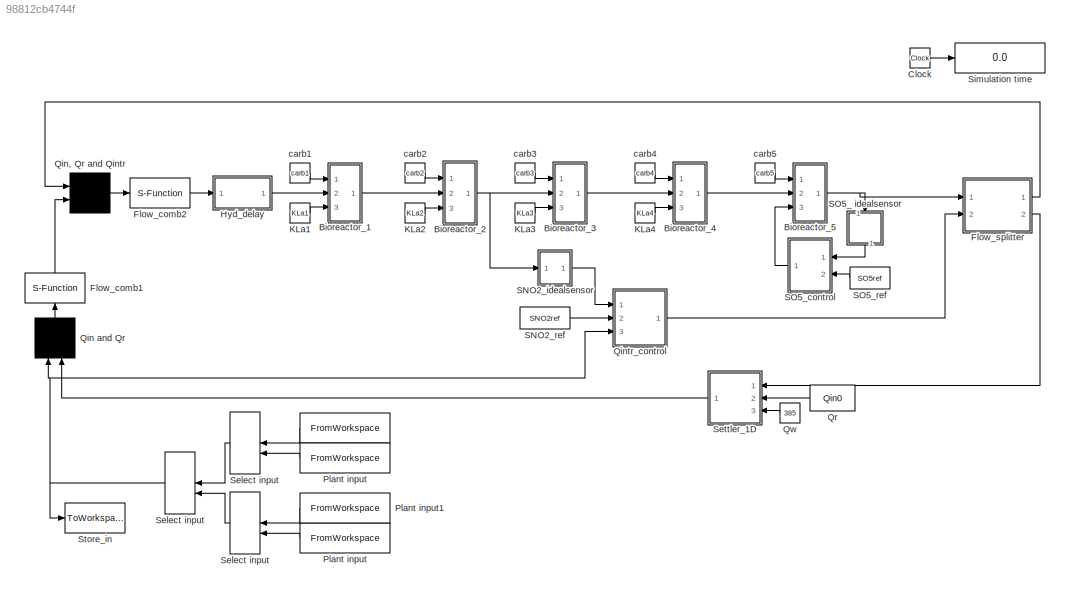
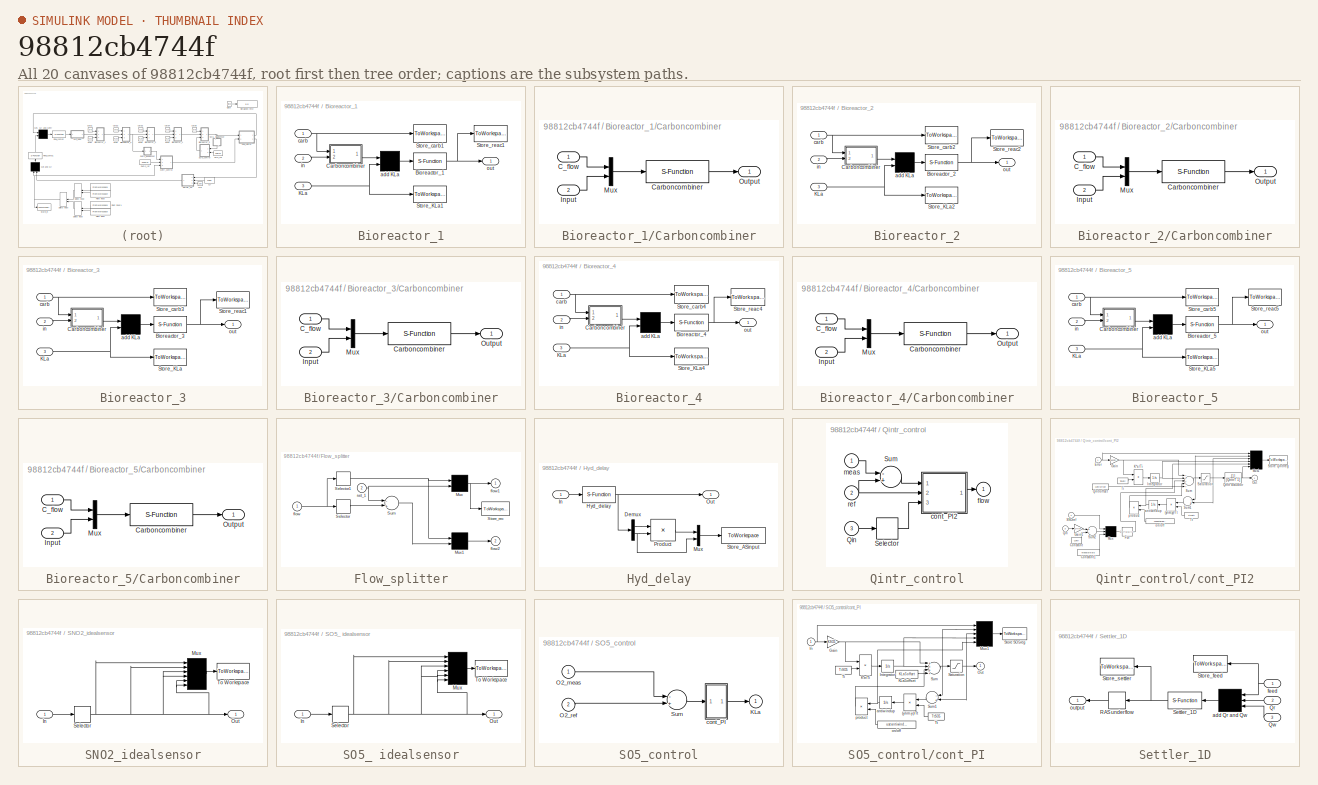
[diagram: thumbnail index - all 20 canvases of the model, root first then tree order]
MODEL slx_98812cb4744f
KIND model
CONFIG AbsTol = 1e-8
CONFIG EnableMultiTasking = off
CONFIG FixedStep = 0.01
CONFIG MaxStep = auto
CONFIG MinStep = auto
CONFIG RelTol = 1e-5
CONFIG SampleTimeConstraint = Unconstrained
CONFIG Solver = ode15s
CONFIG SolverName = ode15s
CONFIG StartTime = 0.0
CONFIG StopTime = 150
BLOCK [FromWorkspace]  
  OutputAfterFinalValue = Holding final value
  VariableName = CONSTINFLUENT
BLOCK [ManualSwitch]  Select input
BLOCK [SubSystem] Bioreactor_1
  Ports = [3, 1]
  RequestExecContextInheritance = off
BLOCK [S-Function] Bioreactor_1/Bioreactor_1
  EnableBusSupport = off
  FunctionName = asm1
  Parameters = XINIT1,PAR1,VOL1,SOSAT1
  Ports = [1, 1]
  SFcnIsStateOwnerBlock = off
  SFunctionDeploymentMode = off
BLOCK [SubSystem] Bioreactor_1/Carboncombiner
  Ports = [2, 1]
  RequestExecContextInheritance = off
BLOCK [Inport] Bioreactor_1/Carboncombiner/C_flow
  IconDisplay = Port number
BLOCK [S-Function] Bioreactor_1/Carboncombiner/Carboncombiner
  EnableBusSupport = off
  FunctionName = carboncombiner
  Parameters = CARBONSOURCECONC
  Ports = [1, 1]
  SFcnIsStateOwnerBlock = off
  SFunctionDeploymentMode = off
BLOCK [Inport] Bioreactor_1/Carboncombiner/Input
  IconDisplay = Port number
  Port = 2
BLOCK [Mux] Bioreactor_1/Carboncombiner/Mux
  DisplayOption = bar
  Inputs = 2
  Ports = [2, 1]
BLOCK [Outport] Bioreactor_1/Carboncombiner/Output
  IconDisplay = Port number
BLOCK [Inport] Bioreactor_1/KLa
  IconDisplay = Port number
  Port = 3
BLOCK [ToWorkspace] Bioreactor_1/Store_KLa1
  MaxDataPoints = inf
  Ports = [1]
  SampleTime = -1
  VariableName = kla1in
BLOCK [ToWorkspace] Bioreactor_1/Store_carb1
  MaxDataPoints = inf
  Ports = [1]
  SampleTime = -1
  VariableName = carbon1in
BLOCK [ToWorkspace] Bioreactor_1/Store_reac1
  MaxDataPoints = inf
  Ports = [1]
  SampleTime = -1
  VariableName = reac1
BLOCK [Mux] Bioreactor_1/add KLa
  Inputs = 2
  Ports = [2, 1]
BLOCK [Inport] Bioreactor_1/carb
  IconDisplay = Port number
BLOCK [Inport] Bioreactor_1/in
  IconDisplay = Port number
  Port = 2
BLOCK [Outport] Bioreactor_1/out
  IconDisplay = Port number
BLOCK [SubSystem] Bioreactor_2
  Ports = [3, 1]
  RequestExecContextInheritance = off
BLOCK [S-Function] Bioreactor_2/Bioreactor_2
  EnableBusSupport = off
  FunctionName = asm1
  Parameters = XINIT2,PAR2,VOL2,SOSAT2
  Ports = [1, 1]
  SFcnIsStateOwnerBlock = off
  SFunctionDeploymentMode = off
BLOCK [SubSystem] Bioreactor_2/Carboncombiner
  Ports = [2, 1]
  RequestExecContextInheritance = off
BLOCK [Inport] Bioreactor_2/Carboncombiner/C_flow
  IconDisplay = Port number
BLOCK [S-Function] Bioreactor_2/Carboncombiner/Carboncombiner
  EnableBusSupport = off
  FunctionName = carboncombiner
  Parameters = CARBONSOURCECONC
  Ports = [1, 1]
  SFcnIsStateOwnerBlock = off
  SFunctionDeploymentMode = off
BLOCK [Inport] Bioreactor_2/Carboncombiner/Input
  IconDisplay = Port number
  Port = 2
BLOCK [Mux] Bioreactor_2/Carboncombiner/Mux
  DisplayOption = bar
  Inputs = 2
  Ports = [2, 1]
BLOCK [Outport] Bioreactor_2/Carboncombiner/Output
  IconDisplay = Port number
BLOCK [Inport] Bioreactor_2/KLa
  IconDisplay = Port number
  Port = 3
BLOCK [ToWorkspace] Bioreactor_2/Store_KLa2
  MaxDataPoints = inf
  Ports = [1]
  SampleTime = -1
  VariableName = kla2in
BLOCK [ToWorkspace] Bioreactor_2/Store_carb2
  MaxDataPoints = inf
  Ports = [1]
  SampleTime = -1
  VariableName = carbon2in
BLOCK [ToWorkspace] Bioreactor_2/Store_reac2
  MaxDataPoints = inf
  Ports = [1]
  SampleTime = -1
  VariableName = reac2
BLOCK [Mux] Bioreactor_2/add KLa
  Inputs = 2
  Ports = [2, 1]
BLOCK [Inport] Bioreactor_2/carb
  IconDisplay = Port number
BLOCK [Inport] Bioreactor_2/in
  IconDisplay = Port number
  Port = 2
BLOCK [Outport] Bioreactor_2/out
  IconDisplay = Port number
BLOCK [SubSystem] Bioreactor_3
  Ports = [3, 1]
  RequestExecContextInheritance = off
BLOCK [S-Function] Bioreactor_3/Bioreactor_3
  EnableBusSupport = off
  FunctionName = asm1
  Parameters = XINIT3,PAR3,VOL3,SOSAT3
  Ports = [1, 1]
  SFcnIsStateOwnerBlock = off
  SFunctionDeploymentMode = off
BLOCK [SubSystem] Bioreactor_3/Carboncombiner
  Ports = [2, 1]
  RequestExecContextInheritance = off
BLOCK [Inport] Bioreactor_3/Carboncombiner/C_flow
  IconDisplay = Port number
BLOCK [S-Function] Bioreactor_3/Carboncombiner/Carboncombiner
  EnableBusSupport = off
  FunctionName = carboncombiner
  Parameters = CARBONSOURCECONC
  Ports = [1, 1]
  SFcnIsStateOwnerBlock = off
  SFunctionDeploymentMode = off
BLOCK [Inport] Bioreactor_3/Carboncombiner/Input
  IconDisplay = Port number
  Port = 2
BLOCK [Mux] Bioreactor_3/Carboncombiner/Mux
  DisplayOption = bar
  Inputs = 2
  Ports = [2, 1]
BLOCK [Outport] Bioreactor_3/Carboncombiner/Output
  IconDisplay = Port number
BLOCK [Inport] Bioreactor_3/KLa
  IconDisplay = Port number
  Port = 3
BLOCK [ToWorkspace] Bioreactor_3/Store_KLa
  MaxDataPoints = inf
  Ports = [1]
  SampleTime = -1
  VariableName = kla3in
BLOCK [ToWorkspace] Bioreactor_3/Store_carb3
  MaxDataPoints = inf
  Ports = [1]
  SampleTime = -1
  VariableName = carbon3in
BLOCK [ToWorkspace] Bioreactor_3/Store_reac1
  MaxDataPoints = inf
  Ports = [1]
  SampleTime = -1
  VariableName = reac3
BLOCK [Mux] Bioreactor_3/add KLa
  Inputs = 2
  Ports = [2, 1]
BLOCK [Inport] Bioreactor_3/carb
  IconDisplay = Port number
BLOCK [Inport] Bioreactor_3/in
  IconDisplay = Port number
  Port = 2
BLOCK [Outport] Bioreactor_3/out
  IconDisplay = Port number
BLOCK [SubSystem] Bioreactor_4
  Ports = [3, 1]
  RequestExecContextInheritance = off
BLOCK [S-Function] Bioreactor_4/Bioreactor_4
  EnableBusSupport = off
  FunctionName = asm1
  Parameters = XINIT4,PAR4,VOL4,SOSAT4
  Ports = [1, 1]
  SFcnIsStateOwnerBlock = off
  SFunctionDeploymentMode = off
BLOCK [SubSystem] Bioreactor_4/Carboncombiner
  Ports = [2, 1]
  RequestExecContextInheritance = off
BLOCK [Inport] Bioreactor_4/Carboncombiner/C_flow
  IconDisplay = Port number
BLOCK [S-Function] Bioreactor_4/Carboncombiner/Carboncombiner
  EnableBusSupport = off
  FunctionName = carboncombiner
  Parameters = CARBONSOURCECONC
  Ports = [1, 1]
  SFcnIsStateOwnerBlock = off
  SFunctionDeploymentMode = off
BLOCK [Inport] Bioreactor_4/Carboncombiner/Input
  IconDisplay = Port number
  Port = 2
BLOCK [Mux] Bioreactor_4/Carboncombiner/Mux
  DisplayOption = bar
  Inputs = 2
  Ports = [2, 1]
BLOCK [Outport] Bioreactor_4/Carboncombiner/Output
  IconDisplay = Port number
BLOCK [Inport] Bioreactor_4/KLa
  IconDisplay = Port number
  Port = 3
BLOCK [ToWorkspace] Bioreactor_4/Store_KLa4
  MaxDataPoints = inf
  Ports = [1]
  SampleTime = -1
  VariableName = kla4in
BLOCK [ToWorkspace] Bioreactor_4/Store_carb4
  MaxDataPoints = inf
  Ports = [1]
  SampleTime = -1
  VariableName = carbon4in
BLOCK [ToWorkspace] Bioreactor_4/Store_reac4
  MaxDataPoints = inf
  Ports = [1]
  SampleTime = -1
  VariableName = reac4
BLOCK [Mux] Bioreactor_4/add KLa
  Inputs = 2
  Ports = [2, 1]
BLOCK [Inport] Bioreactor_4/carb
  IconDisplay = Port number
BLOCK [Inport] Bioreactor_4/in
  IconDisplay = Port number
  Port = 2
BLOCK [Outport] Bioreactor_4/out
  IconDisplay = Port number
BLOCK [SubSystem] Bioreactor_5
  Ports = [3, 1]
  RequestExecContextInheritance = off
BLOCK [S-Function] Bioreactor_5/Bioreactor_5
  EnableBusSupport = off
  FunctionName = asm1
  Parameters = XINIT5,PAR5,VOL5,SOSAT5
  Ports = [1, 1]
  SFcnIsStateOwnerBlock = off
  SFunctionDeploymentMode = off
BLOCK [SubSystem] Bioreactor_5/Carboncombiner
  Ports = [2, 1]
  RequestExecContextInheritance = off
BLOCK [Inport] Bioreactor_5/Carboncombiner/C_flow
  IconDisplay = Port number
BLOCK [S-Function] Bioreactor_5/Carboncombiner/Carboncombiner
  EnableBusSupport = off
  FunctionName = carboncombiner
  Parameters = CARBONSOURCECONC
  Ports = [1, 1]
  SFcnIsStateOwnerBlock = off
  SFunctionDeploymentMode = off
BLOCK [Inport] Bioreactor_5/Carboncombiner/Input
  IconDisplay = Port number
  Port = 2
BLOCK [Mux] Bioreactor_5/Carboncombiner/Mux
  DisplayOption = bar
  Inputs = 2
  Ports = [2, 1]
BLOCK [Outport] Bioreactor_5/Carboncombiner/Output
  IconDisplay = Port number
BLOCK [Inport] Bioreactor_5/KLa
  IconDisplay = Port number
  Port = 3
BLOCK [ToWorkspace] Bioreactor_5/Store_KLa5
  MaxDataPoints = inf
  Ports = [1]
  SampleTime = -1
  VariableName = kla5in
BLOCK [ToWorkspace] Bioreactor_5/Store_carb5
  MaxDataPoints = inf
  Ports = [1]
  SampleTime = -1
  VariableName = carbon5in
BLOCK [ToWorkspace] Bioreactor_5/Store_reac5
  MaxDataPoints = inf
  Ports = [1]
  SampleTime = -1
  VariableName = reac5
BLOCK [Mux] Bioreactor_5/add KLa
  Inputs = 2
  Ports = [2, 1]
BLOCK [Inport] Bioreactor_5/carb
  IconDisplay = Port number
BLOCK [Inport] Bioreactor_5/in
  IconDisplay = Port number
  Port = 2
BLOCK [Outport] Bioreactor_5/out
  IconDisplay = Port number
BLOCK [Clock] Clock
BLOCK [S-Function] Flow_comb1
  EnableBusSupport = off
  FunctionName = combiner
  Ports = [1, 1]
  SFcnIsStateOwnerBlock = off
  SFunctionDeploymentMode = off
BLOCK [S-Function] Flow_comb2
  EnableBusSupport = off
  FunctionName = combiner
  Ports = [1, 1]
  SFcnIsStateOwnerBlock = off
  SFunctionDeploymentMode = off
BLOCK [SubSystem] Flow_splitter
  Ports = [2, 2]
  RequestExecContextInheritance = off
BLOCK [Mux] Flow_splitter/Mux
  Inputs = 2
  Ports = [2, 1]
BLOCK [Mux] Flow_splitter/Mux1
  Inputs = 2
  Ports = [2, 1]
BLOCK [Selector] Flow_splitter/Selector
  IndexOptions = Index vector (dialog)
  Indices = [15]
  InputPortWidth = 15
  OutputSizes = 1
  Ports = [1, 1]
BLOCK [Selector] Flow_splitter/Selector1
  IndexOptions = Index vector (dialog)
  Indices = [1 2 3 4 5 6 7 8 9 10 11 12 13 14]
  InputPortWidth = 15
  OutputSizes = 1
  Ports = [1, 1]
BLOCK [ToWorkspace] Flow_splitter/Store_rec
  MaxDataPoints = inf
  Ports = [1]
  SampleTime = -1
  VariableName = rec
BLOCK [Sum] Flow_splitter/Sum
  Inputs = -+
  Ports = [2, 1]
BLOCK [Inport] Flow_splitter/flow
  IconDisplay = Port number
BLOCK [Outport] Flow_splitter/flow1
  IconDisplay = Port number
BLOCK [Outport] Flow_splitter/flow2
  IconDisplay = Port number
  Port = 2
BLOCK [Inport] Flow_splitter/set_1
  IconDisplay = Port number
  Port = 2
BLOCK [SubSystem] Hyd_delay
  Ports = [1, 1]
  RequestExecContextInheritance = off
BLOCK [Demux] Hyd_delay/Demux
  Outputs = [14,1]
  Ports = [1, 2]
BLOCK [S-Function] Hyd_delay/Hyd_delay
  EnableBusSupport = off
  FunctionName = hyddelayv3
  Parameters = XINITDELAY,PAR1,T
  Ports = [1, 1]
  SFcnIsStateOwnerBlock = off
  SFunctionDeploymentMode = off
BLOCK [Inport] Hyd_delay/In
  IconDisplay = Port number
BLOCK [Mux] Hyd_delay/Mux
  DisplayOption = bar
  Inputs = 2
  Ports = [2, 1]
BLOCK [Outport] Hyd_delay/Out
  IconDisplay = Port number
BLOCK [Product] Hyd_delay/Product
  InputSameDT = off
  Ports = [2, 1]
  RndMeth = Floor
BLOCK [ToWorkspace] Hyd_delay/Store_ASinput
  MaxDataPoints = inf
  Ports = [1]
  SampleTime = -1
  VariableName = ASinput
BLOCK [Constant] KLa1
  Value = KLa1
BLOCK [Constant] KLa2
  Value = KLa2
BLOCK [Constant] KLa3
  Value = KLa3
BLOCK [Constant] KLa4
  Value = KLa4
BLOCK [FromWorkspace] Plant input
  OutputAfterFinalValue = Holding final value
  VariableName = DRYINFLUENT
BLOCK [FromWorkspace] Plant input 
  OutputAfterFinalValue = Holding final value
  VariableName = STORMINFLUENT
BLOCK [FromWorkspace] Plant input1
  OutputAfterFinalValue = Holding final value
  VariableName = RAININFLUENT
BLOCK [Mux] Qin and Qr
  Inputs = 2
  Ports = [2, 1]
BLOCK [Mux] Qin, Qr and Qintr
  Inputs = 2
  Ports = [2, 1]
BLOCK [SubSystem] Qintr_control
  Ports = [3, 1]
  RequestExecContextInheritance = off
BLOCK [Inport] Qintr_control/Qin
  IconDisplay = Port number
  Port = 3
BLOCK [Selector] Qintr_control/Selector
  IndexOptions = Index vector (dialog)
  Indices = [15]
  InputPortWidth = 15
  OutputSizes = 1
  Ports = [1, 1]
BLOCK [Sum] Qintr_control/Sum
  Inputs = -+
  Ports = [2, 1]
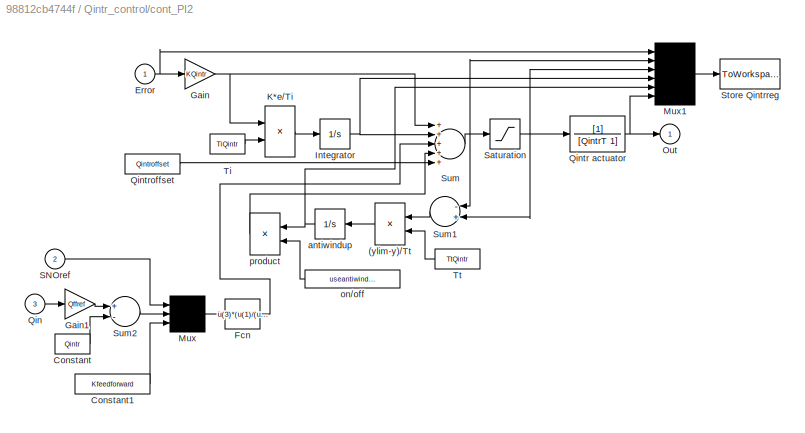
BLOCK [SubSystem] Qintr_control/cont_PI2
  Ports = [3, 1]
  RequestExecContextInheritance = off
BLOCK [Product] Qintr_control/cont_PI2/(ylim-y)//Tt
  Inputs = */
  Ports = [2, 1]
  RndMeth = Floor
BLOCK [Constant] Qintr_control/cont_PI2/Constant
  Value = Qintr
BLOCK [Constant] Qintr_control/cont_PI2/Constant1
  Value = Kfeedforward
BLOCK [Inport] Qintr_control/cont_PI2/Error
  IconDisplay = Port number
BLOCK [Fcn] Qintr_control/cont_PI2/Fcn
  Expr = u(3)*(u(1)/(u(1)+1))*u(2)
BLOCK [Gain] Qintr_control/cont_PI2/Gain
  Gain = KQintr
BLOCK [Gain] Qintr_control/cont_PI2/Gain1
  Gain = Qffref
BLOCK [Integrator] Qintr_control/cont_PI2/Integrator
  InitialCondition = Qintrintstate
  Ports = [1, 1]
BLOCK [Product] Qintr_control/cont_PI2/K*e//Ti
  Inputs = */
  Ports = [2, 1]
  RndMeth = Floor
BLOCK [Mux] Qintr_control/cont_PI2/Mux
  Inputs = 3
  Ports = [3, 1]
BLOCK [Mux] Qintr_control/cont_PI2/Mux1
  Inputs = 6
  Ports = [6, 1]
BLOCK [Outport] Qintr_control/cont_PI2/Out
  IconDisplay = Port number
BLOCK [Inport] Qintr_control/cont_PI2/Qin
  IconDisplay = Port number
  Port = 3
BLOCK [TransferFcn] Qintr_control/cont_PI2/Qintr actuator
  Denominator = [QintrT 1]
BLOCK [Constant] Qintr_control/cont_PI2/Qintroffset
  Value = Qintroffset
BLOCK [Inport] Qintr_control/cont_PI2/SNOref
  IconDisplay = Port number
  Port = 2
BLOCK [Saturate] Qintr_control/cont_PI2/Saturation
  InputPortMap = u0
  LowerLimit = 0
  Ports = [1, 1]
  UpperLimit = Qintr_max
BLOCK [ToWorkspace] Qintr_control/cont_PI2/Store Qintrreg
  MaxDataPoints = inf
  Ports = [1]
  SampleTime = -1
  VariableName = Qintrreg
BLOCK [Sum] Qintr_control/cont_PI2/Sum
  Inputs = +++++
  Ports = [5, 1]
BLOCK [Sum] Qintr_control/cont_PI2/Sum1
  Inputs = -+
  Ports = [2, 1]
BLOCK [Sum] Qintr_control/cont_PI2/Sum2
  Inputs = +-
  Ports = [2, 1]
BLOCK [Constant] Qintr_control/cont_PI2/Ti
  Value = TiQintr
BLOCK [Constant] Qintr_control/cont_PI2/Tt
  Value = TtQintr
BLOCK [Integrator] Qintr_control/cont_PI2/antiwindup
  InitialCondition = Qintrawstate
  Ports = [1, 1]
BLOCK [Constant] Qintr_control/cont_PI2/on//off
  Value = useantiwindupQintr
BLOCK [Product] Qintr_control/cont_PI2/product
  Inputs = **
  Ports = [2, 1]
  RndMeth = Floor
BLOCK [Outport] Qintr_control/flow
  IconDisplay = Port number
BLOCK [Inport] Qintr_control/meas
  IconDisplay = Port number
BLOCK [Inport] Qintr_control/ref
  IconDisplay = Port number
  Port = 2
BLOCK [Constant] Qr
  Value = Qin0
BLOCK [Constant] Qw
  Value = 385
BLOCK [SubSystem] SNO2_idealsensor
  Ports = [1, 1]
  RequestExecContextInheritance = off
BLOCK [Inport] SNO2_idealsensor/In
  IconDisplay = Port number
BLOCK [Mux] SNO2_idealsensor/Mux
  Inputs = 6
  Ports = [6, 1]
BLOCK [Outport] SNO2_idealsensor/Out
  IconDisplay = Port number
BLOCK [Selector] SNO2_idealsensor/Selector
  IndexOptions = Index vector (dialog)
  Indices = [9]
  InputPortWidth = 15
  OutputSizes = 1
  Ports = [1, 1]
BLOCK [ToWorkspace] SNO2_idealsensor/To Workspace
  MaxDataPoints = inf
  Ports = [1]
  SampleTime = -1
  VariableName = SNO2sensor
BLOCK [Constant] SNO2_ref
  Value = SNO2ref
BLOCK [SubSystem] SO5_ idealsensor
  Ports = [1, 1]
  RequestExecContextInheritance = off
BLOCK [Inport] SO5_ idealsensor/In
  IconDisplay = Port number
BLOCK [Mux] SO5_ idealsensor/Mux
  Inputs = 6
  Ports = [6, 1]
BLOCK [Outport] SO5_ idealsensor/Out
  IconDisplay = Port number
BLOCK [Selector] SO5_ idealsensor/Selector
  IndexOptions = Index vector (dialog)
  Indices = [8]
  InputPortWidth = 15
  OutputSizes = 1
  Ports = [1, 1]
BLOCK [ToWorkspace] SO5_ idealsensor/To Workspace
  MaxDataPoints = inf
  Ports = [1]
  SampleTime = -1
  VariableName = SO5sensor
BLOCK [SubSystem] SO5_control
  Ports = [2, 1]
  RequestExecContextInheritance = off
BLOCK [Outport] SO5_control/KLa
  IconDisplay = Port number
BLOCK [Inport] SO5_control/O2_meas
  IconDisplay = Port number
BLOCK [Inport] SO5_control/O2_ref
  IconDisplay = Port number
  Port = 2
BLOCK [Sum] SO5_control/Sum
  Inputs = -+
  Ports = [2, 1]
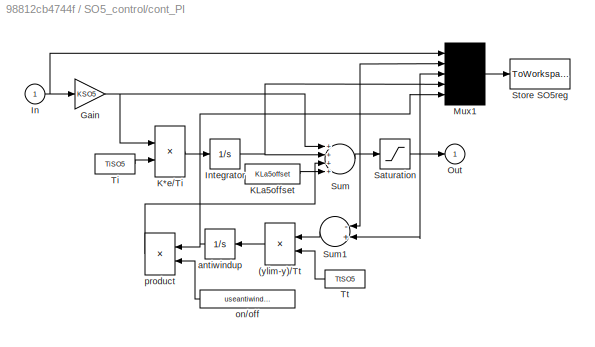
BLOCK [SubSystem] SO5_control/cont_PI
  Ports = [1, 1]
  RequestExecContextInheritance = off
BLOCK [Product] SO5_control/cont_PI/(ylim-y)//Tt
  Inputs = */
  Ports = [2, 1]
  RndMeth = Floor
BLOCK [Gain] SO5_control/cont_PI/Gain
  Gain = KSO5
BLOCK [Inport] SO5_control/cont_PI/In
  IconDisplay = Port number
BLOCK [Integrator] SO5_control/cont_PI/Integrator
  InitialCondition = SO5intstate
  Ports = [1, 1]
BLOCK [Product] SO5_control/cont_PI/K*e//Ti
  Inputs = */
  Ports = [2, 1]
  RndMeth = Floor
BLOCK [Constant] SO5_control/cont_PI/KLa5offset
  Value = KLa5offset
BLOCK [Mux] SO5_control/cont_PI/Mux1
  Inputs = 5
  Ports = [5, 1]
BLOCK [Outport] SO5_control/cont_PI/Out
  IconDisplay = Port number
BLOCK [Saturate] SO5_control/cont_PI/Saturation
  InputPortMap = u0
  LowerLimit = 0
  Ports = [1, 1]
  UpperLimit = KLa5_max
BLOCK [ToWorkspace] SO5_control/cont_PI/Store SO5reg
  MaxDataPoints = inf
  Ports = [1]
  SampleTime = -1
  VariableName = SO5reg
BLOCK [Sum] SO5_control/cont_PI/Sum
  Inputs = ++++
  Ports = [4, 1]
BLOCK [Sum] SO5_control/cont_PI/Sum1
  Inputs = -+
  Ports = [2, 1]
BLOCK [Constant] SO5_control/cont_PI/Ti
  Value = TiSO5
BLOCK [Constant] SO5_control/cont_PI/Tt
  Value = TtSO5
BLOCK [Integrator] SO5_control/cont_PI/antiwindup
  InitialCondition = SO5awstate
  Ports = [1, 1]
BLOCK [Constant] SO5_control/cont_PI/on//off
  Value = useantiwindupSO5
BLOCK [Product] SO5_control/cont_PI/product
  Inputs = **
  Ports = [2, 1]
  RndMeth = Floor
BLOCK [Constant] SO5_ref
  Value = SO5ref
BLOCK [ManualSwitch] Select input
BLOCK [ManualSwitch] Select input 
  CurrentSetting = 0
BLOCK [SubSystem] Settler_1D
  Ports = [3, 1]
  RequestExecContextInheritance = off
BLOCK [Inport] Settler_1D/Qr
  IconDisplay = Port number
  Port = 2
BLOCK [Inport] Settler_1D/Qw
  IconDisplay = Port number
  Port = 3
BLOCK [Selector] Settler_1D/RAS underflow
  IndexOptions = Index vector (dialog)
  Indices = [1 2 3 4 5 6 7 8 9 10 11 12 13 14 15]
  InputPortWidth = 113
  OutputSizes = 1
  Ports = [1, 1]
BLOCK [S-Function] Settler_1D/Settler_1D
  EnableBusSupport = off
  FunctionName = settler1dv4
  Parameters = SETTLERINIT,SETTLERPAR,DIM,LAYER,MODELTYPE
  Ports = [1, 1]
  SFcnIsStateOwnerBlock = off
  SFunctionDeploymentMode = off
BLOCK [ToWorkspace] Settler_1D/Store_feed
  MaxDataPoints = inf
  Ports = [1]
  SampleTime = -1
  VariableName = feed
BLOCK [ToWorkspace] Settler_1D/Store_settler
  MaxDataPoints = inf
  Ports = [1]
  SampleTime = -1
  VariableName = settler
BLOCK [Mux] Settler_1D/add Qr and Qw
  Inputs = 3
  Ports = [3, 1]
BLOCK [Inport] Settler_1D/feed
  IconDisplay = Port number
BLOCK [Outport] Settler_1D/output
  IconDisplay = Port number
BLOCK [Display] Simulation time
  Decimation = 1
  Ports = [1]
BLOCK [ToWorkspace] Store_in
  MaxDataPoints = inf
  Ports = [1]
  SampleTime = -1
  VariableName = in
BLOCK [Constant] carb1
  Value = carb1
BLOCK [Constant] carb2
  Value = carb2
BLOCK [Constant] carb3
  Value = carb3
BLOCK [Constant] carb4
  Value = carb4
BLOCK [Constant] carb5
  Value = carb5
LINE  :1 -> Select input:1
NET  Select input:1 -> Qin and Qr:1, Qintr_control:3, Store_in:1
NET Bioreactor_1/Bioreactor_1:1 -> Bioreactor_1/Store_reac1:1, Bioreactor_1/out:1
LINE Bioreactor_1/Carboncombiner/C_flow:1 -> Bioreactor_1/Carboncombiner/Mux:1
LINE Bioreactor_1/Carboncombiner/Carboncombiner:1 -> Bioreactor_1/Carboncombiner/Output:1
LINE Bioreactor_1/Carboncombiner/Input:1 -> Bioreactor_1/Carboncombiner/Mux:2
LINE Bioreactor_1/Carboncombiner/Mux:1 -> Bioreactor_1/Carboncombiner/Carboncombiner:1
LINE Bioreactor_1/Carboncombiner:1 -> Bioreactor_1/add KLa:1
NET Bioreactor_1/KLa:1 -> Bioreactor_1/Store_KLa1:1, Bioreactor_1/add KLa:2
LINE Bioreactor_1/add KLa:1 -> Bioreactor_1/Bioreactor_1:1
NET Bioreactor_1/carb:1 -> Bioreactor_1/Carboncombiner:1, Bioreactor_1/Store_carb1:1
LINE Bioreactor_1/in:1 -> Bioreactor_1/Carboncombiner:2
LINE Bioreactor_1:1 -> Bioreactor_2:2
NET Bioreactor_2/Bioreactor_2:1 -> Bioreactor_2/Store_reac2:1, Bioreactor_2/out:1
LINE Bioreactor_2/Carboncombiner/C_flow:1 -> Bioreactor_2/Carboncombiner/Mux:1
LINE Bioreactor_2/Carboncombiner/Carboncombiner:1 -> Bioreactor_2/Carboncombiner/Output:1
LINE Bioreactor_2/Carboncombiner/Input:1 -> Bioreactor_2/Carboncombiner/Mux:2
LINE Bioreactor_2/Carboncombiner/Mux:1 -> Bioreactor_2/Carboncombiner/Carboncombiner:1
LINE Bioreactor_2/Carboncombiner:1 -> Bioreactor_2/add KLa:1
NET Bioreactor_2/KLa:1 -> Bioreactor_2/Store_KLa2:1, Bioreactor_2/add KLa:2
LINE Bioreactor_2/add KLa:1 -> Bioreactor_2/Bioreactor_2:1
NET Bioreactor_2/carb:1 -> Bioreactor_2/Carboncombiner:1, Bioreactor_2/Store_carb2:1
LINE Bioreactor_2/in:1 -> Bioreactor_2/Carboncombiner:2
NET Bioreactor_2:1 -> Bioreactor_3:2, SNO2_idealsensor:1
NET Bioreactor_3/Bioreactor_3:1 -> Bioreactor_3/Store_reac1:1, Bioreactor_3/out:1
LINE Bioreactor_3/Carboncombiner/C_flow:1 -> Bioreactor_3/Carboncombiner/Mux:1
LINE Bioreactor_3/Carboncombiner/Carboncombiner:1 -> Bioreactor_3/Carboncombiner/Output:1
LINE Bioreactor_3/Carboncombiner/Input:1 -> Bioreactor_3/Carboncombiner/Mux:2
LINE Bioreactor_3/Carboncombiner/Mux:1 -> Bioreactor_3/Carboncombiner/Carboncombiner:1
LINE Bioreactor_3/Carboncombiner:1 -> Bioreactor_3/add KLa:1
NET Bioreactor_3/KLa:1 -> Bioreactor_3/Store_KLa:1, Bioreactor_3/add KLa:2
LINE Bioreactor_3/add KLa:1 -> Bioreactor_3/Bioreactor_3:1
NET Bioreactor_3/carb:1 -> Bioreactor_3/Carboncombiner:1, Bioreactor_3/Store_carb3:1
LINE Bioreactor_3/in:1 -> Bioreactor_3/Carboncombiner:2
LINE Bioreactor_3:1 -> Bioreactor_4:2
NET Bioreactor_4/Bioreactor_4:1 -> Bioreactor_4/Store_reac4:1, Bioreactor_4/out:1
LINE Bioreactor_4/Carboncombiner/C_flow:1 -> Bioreactor_4/Carboncombiner/Mux:1
LINE Bioreactor_4/Carboncombiner/Carboncombiner:1 -> Bioreactor_4/Carboncombiner/Output:1
LINE Bioreactor_4/Carboncombiner/Input:1 -> Bioreactor_4/Carboncombiner/Mux:2
LINE Bioreactor_4/Carboncombiner/Mux:1 -> Bioreactor_4/Carboncombiner/Carboncombiner:1
LINE Bioreactor_4/Carboncombiner:1 -> Bioreactor_4/add KLa:1
NET Bioreactor_4/KLa:1 -> Bioreactor_4/Store_KLa4:1, Bioreactor_4/add KLa:2
LINE Bioreactor_4/add KLa:1 -> Bioreactor_4/Bioreactor_4:1
NET Bioreactor_4/carb:1 -> Bioreactor_4/Carboncombiner:1, Bioreactor_4/Store_carb4:1
LINE Bioreactor_4/in:1 -> Bioreactor_4/Carboncombiner:2
LINE Bioreactor_4:1 -> Bioreactor_5:2
NET Bioreactor_5/Bioreactor_5:1 -> Bioreactor_5/Store_reac5:1, Bioreactor_5/out:1
LINE Bioreactor_5/Carboncombiner/C_flow:1 -> Bioreactor_5/Carboncombiner/Mux:1
LINE Bioreactor_5/Carboncombiner/Carboncombiner:1 -> Bioreactor_5/Carboncombiner/Output:1
LINE Bioreactor_5/Carboncombiner/Input:1 -> Bioreactor_5/Carboncombiner/Mux:2
LINE Bioreactor_5/Carboncombiner/Mux:1 -> Bioreactor_5/Carboncombiner/Carboncombiner:1
LINE Bioreactor_5/Carboncombiner:1 -> Bioreactor_5/add KLa:1
NET Bioreactor_5/KLa:1 -> Bioreactor_5/Store_KLa5:1, Bioreactor_5/add KLa:2
LINE Bioreactor_5/add KLa:1 -> Bioreactor_5/Bioreactor_5:1
NET Bioreactor_5/carb:1 -> Bioreactor_5/Carboncombiner:1, Bioreactor_5/Store_carb5:1
LINE Bioreactor_5/in:1 -> Bioreactor_5/Carboncombiner:2
NET Bioreactor_5:1 -> Flow_splitter:1, SO5_ idealsensor:1
LINE Clock:1 -> Simulation time:1
LINE Flow_comb1:1 -> Qin, Qr and Qintr:2
LINE Flow_comb2:1 -> Hyd_delay:1
LINE Flow_splitter/Mux1:1 -> Flow_splitter/flow2:1
NET Flow_splitter/Mux:1 -> Flow_splitter/Store_rec:1, Flow_splitter/flow1:1
NET Flow_splitter/Selector1:1 -> Flow_splitter/Mux1:1, Flow_splitter/Mux:1
LINE Flow_splitter/Selector:1 -> Flow_splitter/Sum:2
LINE Flow_splitter/Sum:1 -> Flow_splitter/Mux1:2
NET Flow_splitter/flow:1 -> Flow_splitter/Selector1:1, Flow_splitter/Selector:1
NET Flow_splitter/set_1:1 -> Flow_splitter/Mux:2, Flow_splitter/Sum:1
LINE Flow_splitter:1 -> Qin, Qr and Qintr:1
LINE Flow_splitter:2 -> Settler_1D:1
LINE Hyd_delay/Demux:1 -> Hyd_delay/Product:1
NET Hyd_delay/Demux:2 -> Hyd_delay/Mux:2, Hyd_delay/Product:2
NET Hyd_delay/Hyd_delay:1 -> Hyd_delay/Demux:1, Hyd_delay/Out:1
LINE Hyd_delay/In:1 -> Hyd_delay/Hyd_delay:1
LINE Hyd_delay/Mux:1 -> Hyd_delay/Store_ASinput:1
LINE Hyd_delay/Product:1 -> Hyd_delay/Mux:1
LINE Hyd_delay:1 -> Bioreactor_1:2
LINE KLa1:1 -> Bioreactor_1:3
LINE KLa2:1 -> Bioreactor_2:3
LINE KLa3:1 -> Bioreactor_3:3
LINE KLa4:1 -> Bioreactor_4:3
LINE Plant input :1 -> Select input :2
LINE Plant input1:1 -> Select input :1
LINE Plant input:1 -> Select input:2
LINE Qin and Qr:1 -> Flow_comb1:1
LINE Qin, Qr and Qintr:1 -> Flow_comb2:1
LINE Qintr_control/Qin:1 -> Qintr_control/Selector:1
LINE Qintr_control/Selector:1 -> Qintr_control/cont_PI2:3
LINE Qintr_control/Sum:1 -> Qintr_control/cont_PI2:1
LINE Qintr_control/cont_PI2/(ylim-y)//Tt:1 -> Qintr_control/cont_PI2/antiwindup:1
LINE Qintr_control/cont_PI2/Constant1:1 -> Qintr_control/cont_PI2/Mux:3
LINE Qintr_control/cont_PI2/Constant:1 -> Qintr_control/cont_PI2/Sum2:2
NET Qintr_control/cont_PI2/Error:1 -> Qintr_control/cont_PI2/Gain:1, Qintr_control/cont_PI2/Mux1:1
LINE Qintr_control/cont_PI2/Fcn:1 -> Qintr_control/cont_PI2/Sum:3
LINE Qintr_control/cont_PI2/Gain1:1 -> Qintr_control/cont_PI2/Sum2:1
NET Qintr_control/cont_PI2/Gain:1 -> Qintr_control/cont_PI2/K*e//Ti:1, Qintr_control/cont_PI2/Sum:1
NET Qintr_control/cont_PI2/Integrator:1 -> Qintr_control/cont_PI2/Mux1:4, Qintr_control/cont_PI2/Sum:2
LINE Qintr_control/cont_PI2/K*e//Ti:1 -> Qintr_control/cont_PI2/Integrator:1
LINE Qintr_control/cont_PI2/Mux1:1 -> Qintr_control/cont_PI2/Store Qintrreg:1
LINE Qintr_control/cont_PI2/Mux:1 -> Qintr_control/cont_PI2/Fcn:1
LINE Qintr_control/cont_PI2/Qin:1 -> Qintr_control/cont_PI2/Gain1:1
NET Qintr_control/cont_PI2/Qintr actuator:1 -> Qintr_control/cont_PI2/Mux1:6, Qintr_control/cont_PI2/Out:1
LINE Qintr_control/cont_PI2/Qintroffset:1 -> Qintr_control/cont_PI2/Sum:5
LINE Qintr_control/cont_PI2/SNOref:1 -> Qintr_control/cont_PI2/Mux:1
NET Qintr_control/cont_PI2/Saturation:1 -> Qintr_control/cont_PI2/Mux1:3, Qintr_control/cont_PI2/Qintr actuator:1, Qintr_control/cont_PI2/Sum1:2
LINE Qintr_control/cont_PI2/Sum1:1 -> Qintr_control/cont_PI2/(ylim-y)//Tt:1
LINE Qintr_control/cont_PI2/Sum2:1 -> Qintr_control/cont_PI2/Mux:2
NET Qintr_control/cont_PI2/Sum:1 -> Qintr_control/cont_PI2/Mux1:2, Qintr_control/cont_PI2/Saturation:1, Qintr_control/cont_PI2/Sum1:1
LINE Qintr_control/cont_PI2/Ti:1 -> Qintr_control/cont_PI2/K*e//Ti:2
LINE Qintr_control/cont_PI2/Tt:1 -> Qintr_control/cont_PI2/(ylim-y)//Tt:2
NET Qintr_control/cont_PI2/antiwindup:1 -> Qintr_control/cont_PI2/Mux1:5, Qintr_control/cont_PI2/product:1
LINE Qintr_control/cont_PI2/on//off:1 -> Qintr_control/cont_PI2/product:2
LINE Qintr_control/cont_PI2/product:1 -> Qintr_control/cont_PI2/Sum:4
LINE Qintr_control/cont_PI2:1 -> Qintr_control/flow:1
LINE Qintr_control/meas:1 -> Qintr_control/Sum:1
NET Qintr_control/ref:1 -> Qintr_control/Sum:2, Qintr_control/cont_PI2:2
LINE Qintr_control:1 -> Flow_splitter:2
LINE Qr:1 -> Settler_1D:2
LINE Qw:1 -> Settler_1D:3
LINE SNO2_idealsensor/In:1 -> SNO2_idealsensor/Selector:1
LINE SNO2_idealsensor/Mux:1 -> SNO2_idealsensor/To Workspace:1
NET SNO2_idealsensor/Selector:1 -> SNO2_idealsensor/Mux:1, SNO2_idealsensor/Mux:2, SNO2_idealsensor/Mux:3, SNO2_idealsensor/Mux:4, SNO2_idealsensor/Mux:5, SNO2_idealsensor/Mux:6, SNO2_idealsensor/Out:1
LINE SNO2_idealsensor:1 -> Qintr_control:1
LINE SNO2_ref:1 -> Qintr_control:2
LINE SO5_ idealsensor/In:1 -> SO5_ idealsensor/Selector:1
LINE SO5_ idealsensor/Mux:1 -> SO5_ idealsensor/To Workspace:1
NET SO5_ idealsensor/Selector:1 -> SO5_ idealsensor/Mux:1, SO5_ idealsensor/Mux:2, SO5_ idealsensor/Mux:3, SO5_ idealsensor/Mux:4, SO5_ idealsensor/Mux:5, SO5_ idealsensor/Mux:6, SO5_ idealsensor/Out:1
LINE SO5_ idealsensor:1 -> SO5_control:1
LINE SO5_control/O2_meas:1 -> SO5_control/Sum:1
LINE SO5_control/O2_ref:1 -> SO5_control/Sum:2
LINE SO5_control/Sum:1 -> SO5_control/cont_PI:1
LINE SO5_control/cont_PI/(ylim-y)//Tt:1 -> SO5_control/cont_PI/antiwindup:1
NET SO5_control/cont_PI/Gain:1 -> SO5_control/cont_PI/K*e//Ti:1, SO5_control/cont_PI/Sum:1
NET SO5_control/cont_PI/In:1 -> SO5_control/cont_PI/Gain:1, SO5_control/cont_PI/Mux1:1
NET SO5_control/cont_PI/Integrator:1 -> SO5_control/cont_PI/Mux1:4, SO5_control/cont_PI/Sum:2
LINE SO5_control/cont_PI/K*e//Ti:1 -> SO5_control/cont_PI/Integrator:1
LINE SO5_control/cont_PI/KLa5offset:1 -> SO5_control/cont_PI/Sum:4
LINE SO5_control/cont_PI/Mux1:1 -> SO5_control/cont_PI/Store SO5reg:1
NET SO5_control/cont_PI/Saturation:1 -> SO5_control/cont_PI/Mux1:3, SO5_control/cont_PI/Out:1, SO5_control/cont_PI/Sum1:2
LINE SO5_control/cont_PI/Sum1:1 -> SO5_control/cont_PI/(ylim-y)//Tt:1
NET SO5_control/cont_PI/Sum:1 -> SO5_control/cont_PI/Mux1:2, SO5_control/cont_PI/Saturation:1, SO5_control/cont_PI/Sum1:1
LINE SO5_control/cont_PI/Ti:1 -> SO5_control/cont_PI/K*e//Ti:2
LINE SO5_control/cont_PI/Tt:1 -> SO5_control/cont_PI/(ylim-y)//Tt:2
NET SO5_control/cont_PI/antiwindup:1 -> SO5_control/cont_PI/Mux1:5, SO5_control/cont_PI/product:1
LINE SO5_control/cont_PI/on//off:1 -> SO5_control/cont_PI/product:2
LINE SO5_control/cont_PI/product:1 -> SO5_control/cont_PI/Sum:3
LINE SO5_control/cont_PI:1 -> SO5_control/KLa:1
LINE SO5_control:1 -> Bioreactor_5:3
LINE SO5_ref:1 -> SO5_control:2
LINE Select input :1 ->  Select input:2
LINE Select input:1 ->  Select input:1
LINE Settler_1D/Qr:1 -> Settler_1D/add Qr and Qw:2
LINE Settler_1D/Qw:1 -> Settler_1D/add Qr and Qw:3
LINE Settler_1D/RAS underflow:1 -> Settler_1D/output:1
NET Settler_1D/Settler_1D:1 -> Settler_1D/RAS underflow:1, Settler_1D/Store_settler:1
LINE Settler_1D/add Qr and Qw:1 -> Settler_1D/Settler_1D:1
NET Settler_1D/feed:1 -> Settler_1D/Store_feed:1, Settler_1D/add Qr and Qw:1
LINE Settler_1D:1 -> Qin and Qr:2
LINE carb1:1 -> Bioreactor_1:1
LINE carb2:1 -> Bioreactor_2:1
LINE carb3:1 -> Bioreactor_3:1
LINE carb4:1 -> Bioreactor_4:1
LINE carb5:1 -> Bioreactor_5:1
note: NET lines group one-source signal fan-out (src -> all destinations, sorted); 1:1 wires keep LINE
